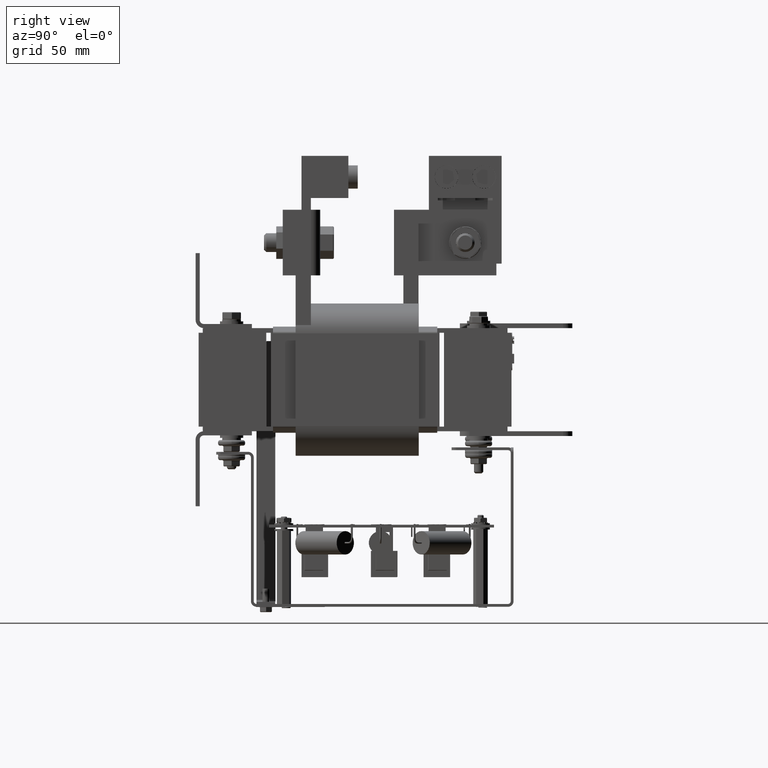
[diagram: clean part render]
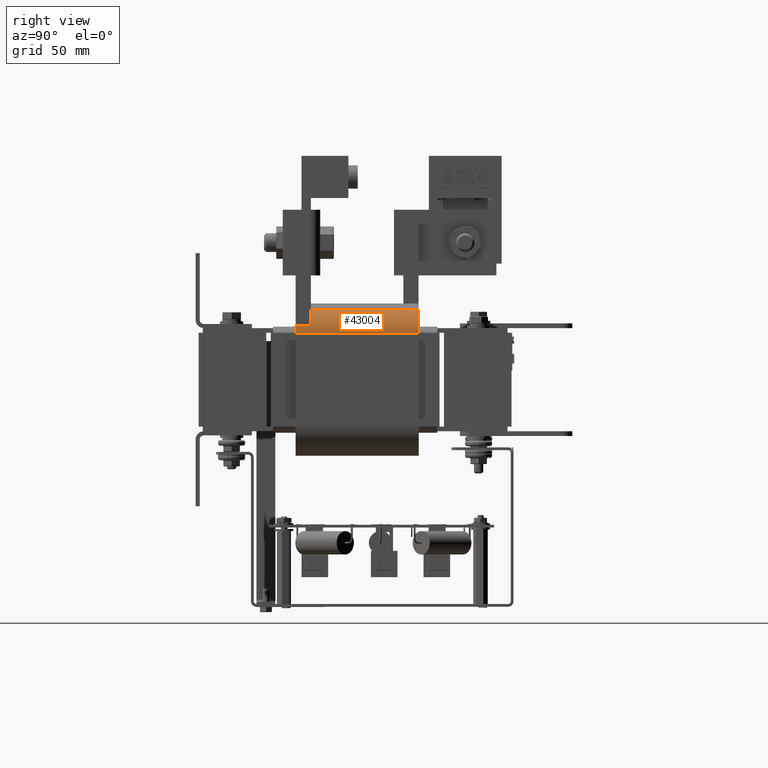
[diagram: same view with one face highlighted and labeled with its STEP entity id]
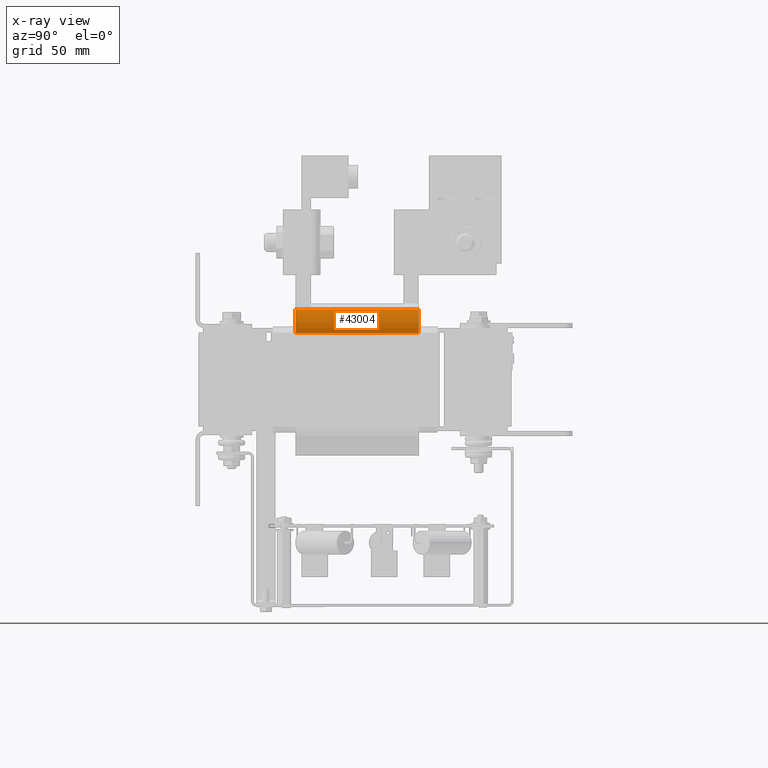
[diagram: x-ray of the same camera — body ghosted, the highlighted face saturated]
A machine part, right view. The second image highlights one B-rep face of the part: STEP entity #43004.
The next image is the same camera in x-ray: the body ghosted, the highlighted face saturated — about 0% of this face is hidden behind the body in this view.
In plain terms, the highlighted cylindrical surface (edge-blend (fillet) strip) has radius 17.1181 mm, axis along (-0, -1, -0).
Its self-contained STEP definition (entity closure, byte-faithful):
#4925=FACE_OUTER_BOUND('',#7353,.T.);
#7353=EDGE_LOOP('',(#36743,#36744,#36745,#36746));
#11218=LINE('',#71787,#15337);
#11248=LINE('',#71874,#15367);
#15337=VECTOR('',#56253,0.393700787401575);
#15367=VECTOR('',#56339,0.393700787401575);
#17560=CIRCLE('',#47053,0.673939534887991);
#17561=CIRCLE('',#47054,0.673939534887991);
#20963=VERTEX_POINT('',#71783);
#20965=VERTEX_POINT('',#71786);
#20993=VERTEX_POINT('',#71870);
#20994=VERTEX_POINT('',#71872);
#26403=EDGE_CURVE('',#20963,#20965,#11218,.T.);
#26447=EDGE_CURVE('',#20993,#20994,#11248,.T.);
#26448=EDGE_CURVE('',#20993,#20963,#17560,.T.);
#26449=EDGE_CURVE('',#20965,#20994,#17561,.T.);
#36743=ORIENTED_EDGE('',*,*,#26448,.F.);
#36744=ORIENTED_EDGE('',*,*,#26447,.T.);
#36745=ORIENTED_EDGE('',*,*,#26449,.F.);
#36746=ORIENTED_EDGE('',*,*,#26403,.F.);
#41186=CYLINDRICAL_SURFACE('',#47052,0.673939534887991);
#43004=ADVANCED_FACE('',(#4925),#41186,.T.);
#47052=AXIS2_PLACEMENT_3D('',#71875,#56340,#56341);
#47053=AXIS2_PLACEMENT_3D('',#71876,#56342,#56343);
#47054=AXIS2_PLACEMENT_3D('',#71877,#56344,#56345);
#56253=DIRECTION('',(0.,0.,1.));
#56339=DIRECTION('',(0.,0.,1.));
#56340=DIRECTION('center_axis',(0.,0.,1.));
#56341=DIRECTION('ref_axis',(-3.48962062475911E-13,-1.,0.));
#56342=DIRECTION('center_axis',(0.,0.,-1.));
#56343=DIRECTION('ref_axis',(-3.48962062475911E-13,-1.,0.));
#56344=DIRECTION('center_axis',(0.,0.,1.));
#56345=DIRECTION('ref_axis',(-3.48962062475911E-13,-1.,0.));
#71783=CARTESIAN_POINT('',(0.0147310919236065,2.45393953488703,0.));
#71786=CARTESIAN_POINT('',(0.0147310919236065,2.45393953488703,3.28));
#71787=CARTESIAN_POINT('',(0.0147310919236065,2.45393953488703,0.));
#71870=CARTESIAN_POINT('',(-0.628885353645152,1.97988088372989,0.));
#71872=CARTESIAN_POINT('',(-0.628885353645152,1.97988088372989,3.28));
#71874=CARTESIAN_POINT('',(-0.628885353645152,1.97988088372989,0.));
#71875=CARTESIAN_POINT('Origin',(0.0147310919233714,1.77999999999904,0.));
#71876=CARTESIAN_POINT('Origin',(0.0147310919233714,1.77999999999904,0.));
#71877=CARTESIAN_POINT('Origin',(0.0147310919233714,1.77999999999904,3.28));